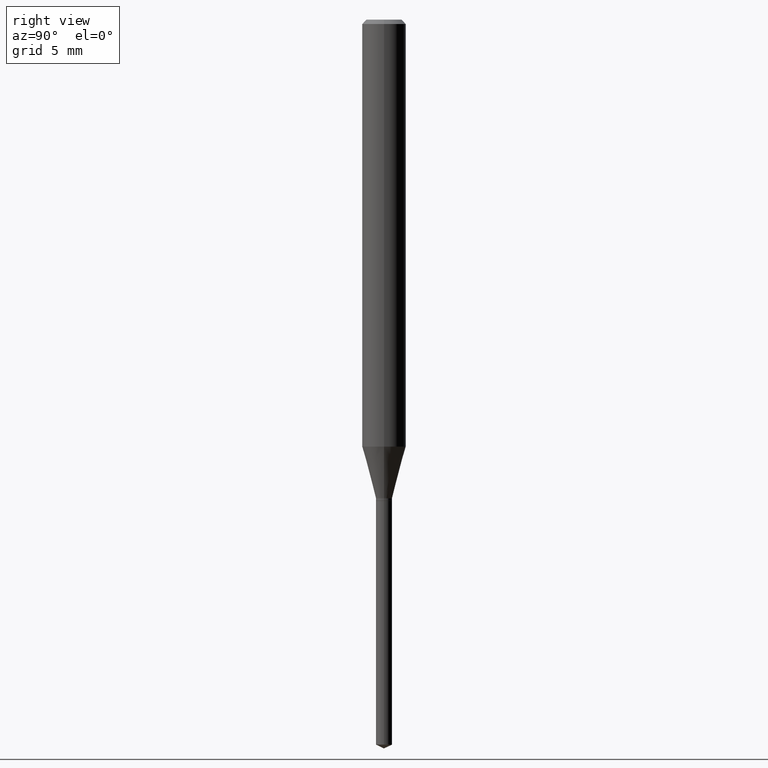
[diagram: clean part render]
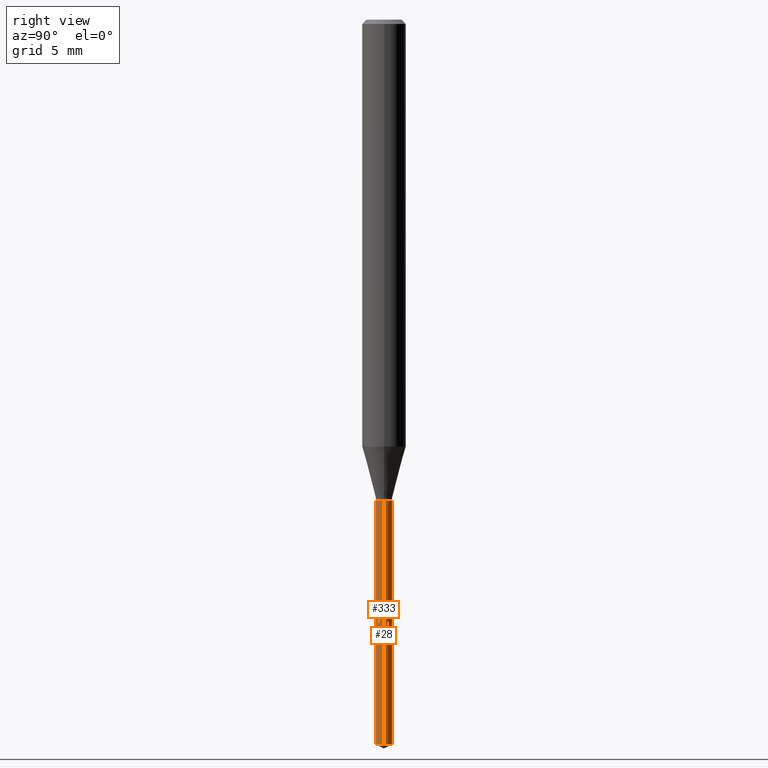
[diagram: same view with one multi-face feature highlighted, each face labeled with its STEP entity id]
A machine part, right view. The highlighted faces form ONE feature: a constant-radius fillet chain: 2 tangent blend faces with common blend radius 0.5499 mm. The faces share edges in the B-rep.
Their STEP definitions:
[1] entity #333 (Cylinder):
#12 = CARTESIAN_POINT ( 'NONE',  ( 3.178375807398821559E-29, -4.537878296094435448E-15, -1.299699999999999855 ) ) ;
#38 = EDGE_LOOP ( 'NONE', ( #341, #450, #209, #152 ) ) ;
#40 = DIRECTION ( 'NONE',  ( 1.000000000000000000, -6.982962677686269866E-15, 0.000000000000000000 ) ) ;
#46 = AXIS2_PLACEMENT_3D ( 'NONE', #225, #481, #40 ) ;
#47 = AXIS2_PLACEMENT_3D ( 'NONE', #12, #425, #420 ) ;
#80 = DIRECTION ( 'NONE',  ( -2.445468806185136877E-29, 3.491481338843145188E-15, 1.000000000000000000 ) ) ;
#89 = EDGE_CURVE ( 'NONE', #191, #379, #271, .T. ) ;
#99 = DIRECTION ( 'NONE',  ( 1.000000000000000000, -6.982962677686269866E-15, 0.000000000000000000 ) ) ;
#100 = EDGE_CURVE ( 'NONE', #129, #379, #457, .T. ) ;
#129 = VERTEX_POINT ( 'NONE', #174 ) ;
#135 = CARTESIAN_POINT ( 'NONE',  ( 0.02165000000000000258, -6.990659436019002382E-15, -1.958904439200944481 ) ) ;
#152 = ORIENTED_EDGE ( 'NONE', *, *, #100, .F. ) ;
#174 = CARTESIAN_POINT ( 'NONE',  ( -0.02164999999999999564, -5.534845792778702158E-15, -1.299699999999999855 ) ) ;
#175 = CARTESIAN_POINT ( 'NONE',  ( 4.790439700363498334E-29, -6.839478294047094651E-15, -1.958904439200944481 ) ) ;
#187 = VERTEX_POINT ( 'NONE', #217 ) ;
#191 = VERTEX_POINT ( 'NONE', #135 ) ;
#209 = ORIENTED_EDGE ( 'NONE', *, *, #89, .T. ) ;
#217 = CARTESIAN_POINT ( 'NONE',  ( -0.02165000000000000258, -6.685645791755032548E-15, -1.958904439200944481 ) ) ;
#221 = EDGE_CURVE ( 'NONE', #187, #191, #439, .T. ) ;
#225 = CARTESIAN_POINT ( 'NONE',  ( 3.178375807398821559E-29, -4.537878296094435448E-15, -1.299699999999999855 ) ) ;
#228 = FACE_OUTER_BOUND ( 'NONE', #38, .T. ) ;
#243 = DIRECTION ( 'NONE',  ( -2.445468806185136597E-29, 3.491481338843145583E-15, 1.000000000000000000 ) ) ;
#251 = LINE ( 'NONE', #404, #308 ) ;
#252 = EDGE_CURVE ( 'NONE', #187, #129, #251, .T. ) ;
#271 = LINE ( 'NONE', #427, #275 ) ;
#272 = AXIS2_PLACEMENT_3D ( 'NONE', #175, #243, #99 ) ;
#275 = VECTOR ( 'NONE', #80, 39.37007874015748143 ) ;
#308 = VECTOR ( 'NONE', #363, 39.37007874015748143 ) ;
#333 = ADVANCED_FACE ( 'NONE', ( #228 ), #488, .T. ) ;
#341 = ORIENTED_EDGE ( 'NONE', *, *, #252, .F. ) ;
#363 = DIRECTION ( 'NONE',  ( -2.445468806185136877E-29, 3.491481338843145188E-15, 1.000000000000000000 ) ) ;
#379 = VERTEX_POINT ( 'NONE', #410 ) ;
#404 = CARTESIAN_POINT ( 'NONE',  ( -0.02164999999999999564, -4.384045793802373345E-15, -1.299699999999999855 ) ) ;
#410 = CARTESIAN_POINT ( 'NONE',  ( 0.02164999999999999564, -4.689059438066343179E-15, -1.299699999999999855 ) ) ;
#420 = DIRECTION ( 'NONE',  ( 1.000000000000000000, -6.982962677686269866E-15, 0.000000000000000000 ) ) ;
#425 = DIRECTION ( 'NONE',  ( -2.445468806185136597E-29, 3.491481338843145583E-15, 1.000000000000000000 ) ) ;
#427 = CARTESIAN_POINT ( 'NONE',  ( 0.02164999999999999564, -4.689059438066343179E-15, -1.299699999999999855 ) ) ;
#439 = CIRCLE ( 'NONE', #272, 0.02164999999999999564 ) ;
#450 = ORIENTED_EDGE ( 'NONE', *, *, #221, .T. ) ;
#457 = CIRCLE ( 'NONE', #47, 0.02164999999999999564 ) ;
#481 = DIRECTION ( 'NONE',  ( -2.445468806185136597E-29, 3.491481338843145583E-15, 1.000000000000000000 ) ) ;
#488 = CYLINDRICAL_SURFACE ( 'NONE', #46, 0.02164999999999999564 ) ;
[2] entity #28 (Cylinder):
#28 = ADVANCED_FACE ( 'NONE', ( #319 ), #205, .T. ) ;
#30 = ORIENTED_EDGE ( 'NONE', *, *, #252, .T. ) ;
#49 = CARTESIAN_POINT ( 'NONE',  ( 3.178375807398821559E-29, -4.537878296094435448E-15, -1.299699999999999855 ) ) ;
#54 = CIRCLE ( 'NONE', #69, 0.02164999999999999564 ) ;
#61 = CARTESIAN_POINT ( 'NONE',  ( 3.178375807398821559E-29, -4.537878296094435448E-15, -1.299699999999999855 ) ) ;
#69 = AXIS2_PLACEMENT_3D ( 'NONE', #181, #383, #219 ) ;
#80 = DIRECTION ( 'NONE',  ( -2.445468806185136877E-29, 3.491481338843145188E-15, 1.000000000000000000 ) ) ;
#89 = EDGE_CURVE ( 'NONE', #191, #379, #271, .T. ) ;
#96 = ORIENTED_EDGE ( 'NONE', *, *, #215, .F. ) ;
#103 = EDGE_LOOP ( 'NONE', ( #298, #30, #96, #222 ) ) ;
#117 = AXIS2_PLACEMENT_3D ( 'NONE', #49, #357, #360 ) ;
#129 = VERTEX_POINT ( 'NONE', #174 ) ;
#135 = CARTESIAN_POINT ( 'NONE',  ( 0.02165000000000000258, -6.990659436019002382E-15, -1.958904439200944481 ) ) ;
#174 = CARTESIAN_POINT ( 'NONE',  ( -0.02164999999999999564, -5.534845792778702158E-15, -1.299699999999999855 ) ) ;
#181 = CARTESIAN_POINT ( 'NONE',  ( 4.790439700363498334E-29, -6.839478294047094651E-15, -1.958904439200944481 ) ) ;
#187 = VERTEX_POINT ( 'NONE', #217 ) ;
#191 = VERTEX_POINT ( 'NONE', #135 ) ;
#205 = CYLINDRICAL_SURFACE ( 'NONE', #117, 0.02164999999999999564 ) ;
#208 = AXIS2_PLACEMENT_3D ( 'NONE', #61, #375, #214 ) ;
#214 = DIRECTION ( 'NONE',  ( 1.000000000000000000, -6.982962677686269866E-15, 0.000000000000000000 ) ) ;
#215 = EDGE_CURVE ( 'NONE', #379, #129, #421, .T. ) ;
#217 = CARTESIAN_POINT ( 'NONE',  ( -0.02165000000000000258, -6.685645791755032548E-15, -1.958904439200944481 ) ) ;
#219 = DIRECTION ( 'NONE',  ( 1.000000000000000000, -6.982962677686269866E-15, 0.000000000000000000 ) ) ;
#222 = ORIENTED_EDGE ( 'NONE', *, *, #89, .F. ) ;
#251 = LINE ( 'NONE', #404, #308 ) ;
#252 = EDGE_CURVE ( 'NONE', #187, #129, #251, .T. ) ;
#271 = LINE ( 'NONE', #427, #275 ) ;
#275 = VECTOR ( 'NONE', #80, 39.37007874015748143 ) ;
#298 = ORIENTED_EDGE ( 'NONE', *, *, #307, .T. ) ;
#307 = EDGE_CURVE ( 'NONE', #191, #187, #54, .T. ) ;
#308 = VECTOR ( 'NONE', #363, 39.37007874015748143 ) ;
#319 = FACE_OUTER_BOUND ( 'NONE', #103, .T. ) ;
#357 = DIRECTION ( 'NONE',  ( -2.445468806185136597E-29, 3.491481338843145583E-15, 1.000000000000000000 ) ) ;
#360 = DIRECTION ( 'NONE',  ( 1.000000000000000000, -6.982962677686269866E-15, 0.000000000000000000 ) ) ;
#363 = DIRECTION ( 'NONE',  ( -2.445468806185136877E-29, 3.491481338843145188E-15, 1.000000000000000000 ) ) ;
#375 = DIRECTION ( 'NONE',  ( -2.445468806185136597E-29, 3.491481338843145583E-15, 1.000000000000000000 ) ) ;
#379 = VERTEX_POINT ( 'NONE', #410 ) ;
#383 = DIRECTION ( 'NONE',  ( -2.445468806185136597E-29, 3.491481338843145583E-15, 1.000000000000000000 ) ) ;
#404 = CARTESIAN_POINT ( 'NONE',  ( -0.02164999999999999564, -4.384045793802373345E-15, -1.299699999999999855 ) ) ;
#410 = CARTESIAN_POINT ( 'NONE',  ( 0.02164999999999999564, -4.689059438066343179E-15, -1.299699999999999855 ) ) ;
#421 = CIRCLE ( 'NONE', #208, 0.02164999999999999564 ) ;
#427 = CARTESIAN_POINT ( 'NONE',  ( 0.02164999999999999564, -4.689059438066343179E-15, -1.299699999999999855 ) ) ;